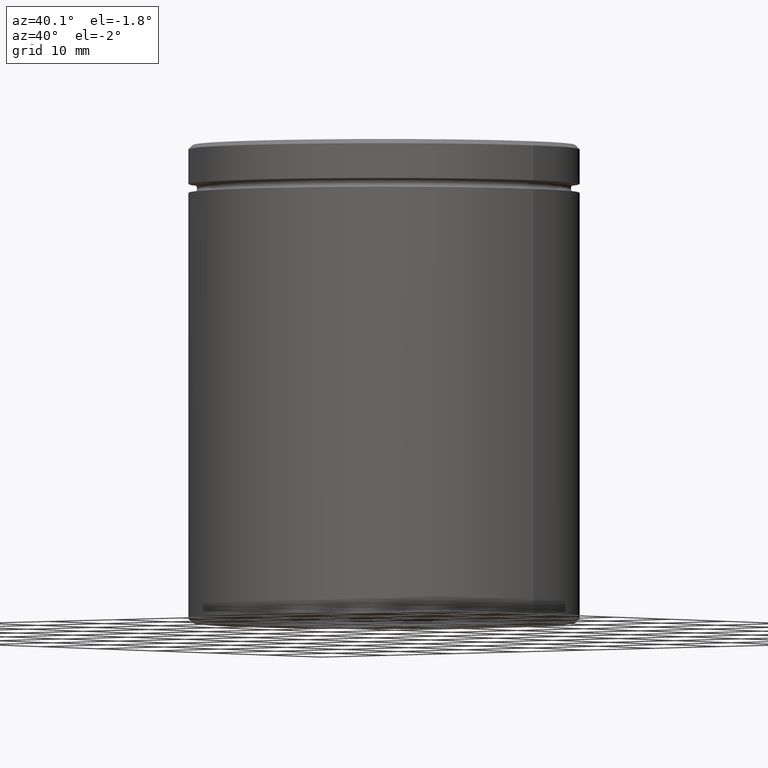
[diagram: clean part render]
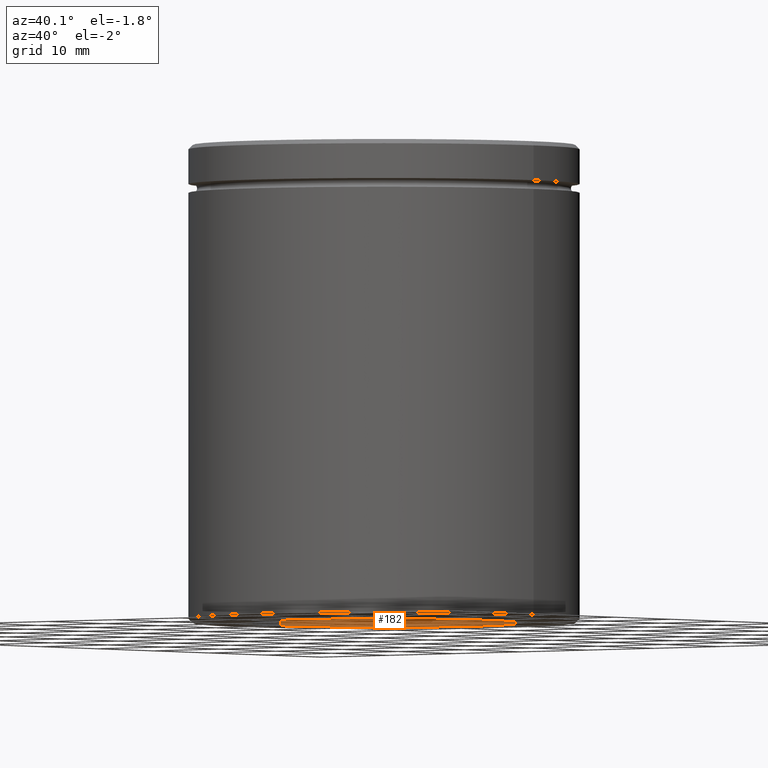
[diagram: same view with one face highlighted and labeled with its STEP entity id]
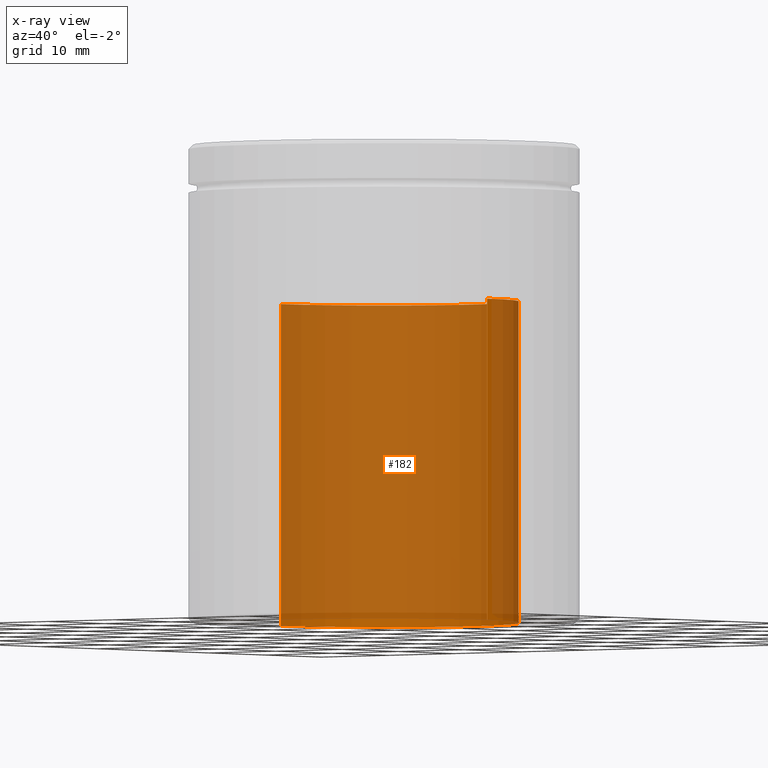
[diagram: x-ray of the same camera — body ghosted, the highlighted face saturated]
A machine part, auxiliary view. The second image highlights one B-rep face of the part: STEP entity #182.
The next image is the same camera in x-ray: the body ghosted, the highlighted face saturated — about 96% of this face is hidden behind the body in this view.
In plain terms, the highlighted cylindrical surface (partial cylindrical patch) has radius 15.5 mm, axis along (-0, -0, -1).
Its self-contained STEP definition (entity closure, byte-faithful):
#31 = DIRECTION ( 'NONE',  ( -0.000000000000000000, -0.000000000000000000, -1.000000000000000000 ) ) ;
#32 = EDGE_CURVE ( 'NONE', #66, #43, #410, .T. ) ;
#34 = AXIS2_PLACEMENT_3D ( 'NONE', #376, #31, #101 ) ;
#43 = VERTEX_POINT ( 'NONE', #386 ) ;
#47 = CARTESIAN_POINT ( 'NONE',  ( -15.50000000000000000, 0.000000000000000000, -55.00000000000000000 ) ) ;
#66 = VERTEX_POINT ( 'NONE', #339 ) ;
#75 = CARTESIAN_POINT ( 'NONE',  ( 0.000000000000000000, 0.000000000000000000, -18.00000000000000355 ) ) ;
#80 = DIRECTION ( 'NONE',  ( 0.000000000000000000, 0.000000000000000000, -1.000000000000000000 ) ) ;
#93 = AXIS2_PLACEMENT_3D ( 'NONE', #75, #344, #194 ) ;
#101 = DIRECTION ( 'NONE',  ( -1.000000000000000000, 0.000000000000000000, 0.000000000000000000 ) ) ;
#103 = LINE ( 'NONE', #411, #205 ) ;
#119 = ORIENTED_EDGE ( 'NONE', *, *, #324, .T. ) ;
#125 = AXIS2_PLACEMENT_3D ( 'NONE', #389, #80, #560 ) ;
#136 = EDGE_CURVE ( 'NONE', #66, #246, #494, .T. ) ;
#162 = VECTOR ( 'NONE', #231, 1000.000000000000000 ) ;
#167 = VERTEX_POINT ( 'NONE', #333 ) ;
#182 = ADVANCED_FACE ( 'NONE', ( #251 ), #428, .F. ) ;
#194 = DIRECTION ( 'NONE',  ( -1.000000000000000000, 0.000000000000000000, 0.000000000000000000 ) ) ;
#205 = VECTOR ( 'NONE', #422, 1000.000000000000000 ) ;
#231 = DIRECTION ( 'NONE',  ( -0.000000000000000000, -0.000000000000000000, -1.000000000000000000 ) ) ;
#232 = ORIENTED_EDGE ( 'NONE', *, *, #355, .F. ) ;
#246 = VERTEX_POINT ( 'NONE', #47 ) ;
#251 = FACE_OUTER_BOUND ( 'NONE', #507, .T. ) ;
#324 = EDGE_CURVE ( 'NONE', #246, #167, #427, .T. ) ;
#332 = ORIENTED_EDGE ( 'NONE', *, *, #32, .F. ) ;
#333 = CARTESIAN_POINT ( 'NONE',  ( 15.50000000000000000, 1.898202538678397557E-15, -55.00000000000000000 ) ) ;
#339 = CARTESIAN_POINT ( 'NONE',  ( -15.50000000000000000, 0.000000000000000000, -18.00000000000000355 ) ) ;
#344 = DIRECTION ( 'NONE',  ( 0.000000000000000000, 0.000000000000000000, -1.000000000000000000 ) ) ;
#355 = EDGE_CURVE ( 'NONE', #43, #167, #103, .T. ) ;
#376 = CARTESIAN_POINT ( 'NONE',  ( 0.000000000000000000, 0.000000000000000000, -18.00000000000000355 ) ) ;
#386 = CARTESIAN_POINT ( 'NONE',  ( 15.50000000000000000, 1.898202538678397557E-15, -18.00000000000000355 ) ) ;
#389 = CARTESIAN_POINT ( 'NONE',  ( 0.000000000000000000, 0.000000000000000000, -55.00000000000000000 ) ) ;
#410 = CIRCLE ( 'NONE', #93, 15.50000000000000000 ) ;
#411 = CARTESIAN_POINT ( 'NONE',  ( 15.50000000000000000, 1.898202538678397557E-15, -18.00000000000000355 ) ) ;
#422 = DIRECTION ( 'NONE',  ( -0.000000000000000000, -0.000000000000000000, -1.000000000000000000 ) ) ;
#427 = CIRCLE ( 'NONE', #125, 15.50000000000000000 ) ;
#428 = CYLINDRICAL_SURFACE ( 'NONE', #34, 15.50000000000000000 ) ;
#453 = CARTESIAN_POINT ( 'NONE',  ( -15.50000000000000000, 0.000000000000000000, -18.00000000000000355 ) ) ;
#494 = LINE ( 'NONE', #453, #162 ) ;
#507 = EDGE_LOOP ( 'NONE', ( #232, #332, #531, #119 ) ) ;
#531 = ORIENTED_EDGE ( 'NONE', *, *, #136, .T. ) ;
#560 = DIRECTION ( 'NONE',  ( -1.000000000000000000, 0.000000000000000000, 0.000000000000000000 ) ) ;